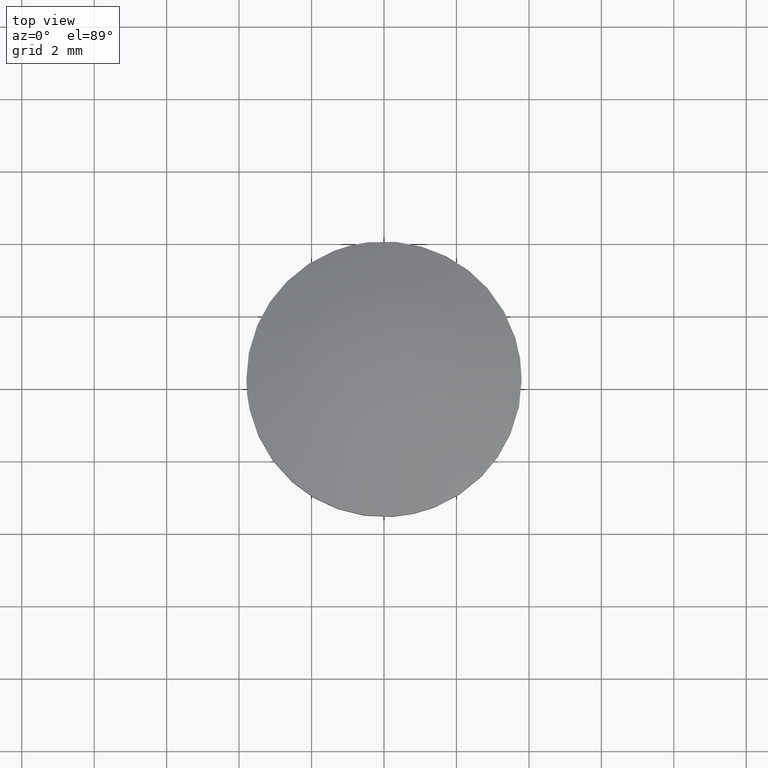
[diagram: clean part render]
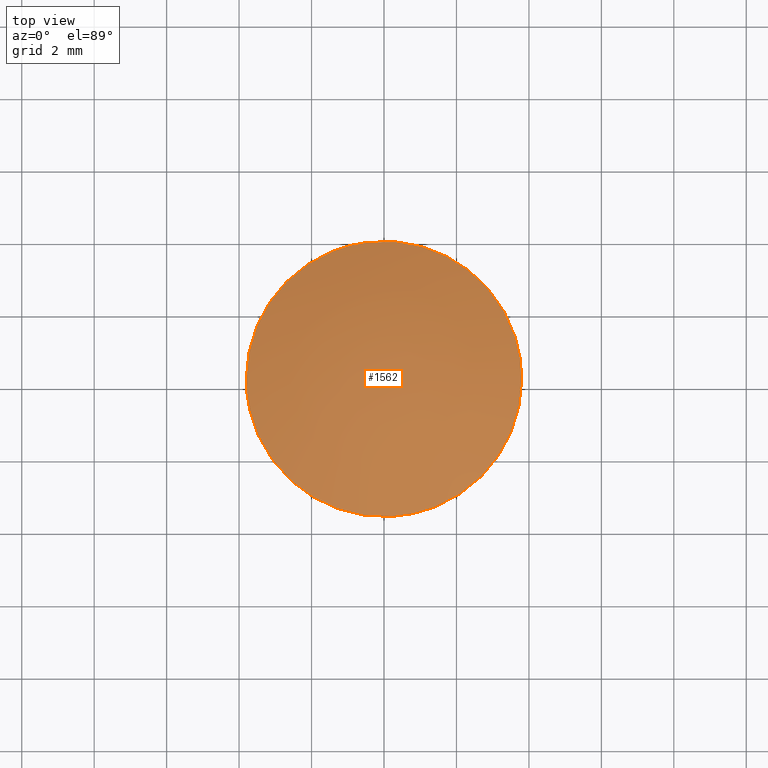
[diagram: same view with one face highlighted and labeled with its STEP entity id]
A machine part, top view. The second image highlights one B-rep face of the part: STEP entity #1562.
In plain terms, the highlighted face is a freeform B-spline surface patch.
Its self-contained STEP definition (entity closure, byte-faithful):
#1303=CARTESIAN_POINT('',(-0.448525131311080,3.773434961649228,2.000001066416300));
#1304=VERTEX_POINT('',#1303);
#1310=CARTESIAN_POINT('',(3.799997579514715,0.0,2.000001066416300));
#1311=VERTEX_POINT('',#1310);
#1312=CARTESIAN_POINT('',(-0.448525131311080,3.773434961649228,2.000001066416299));
#1313=CARTESIAN_POINT('',(-0.225049113184593,3.799997579514716,2.000001066416300));
#1314=CARTESIAN_POINT('',(0.0,3.799997579514715,2.000001066416300));
#1315=CARTESIAN_POINT('',(3.799997579514716,3.799997579514716,2.000001066416300));
#1316=CARTESIAN_POINT('',(3.799997579514715,0.0,2.000001066416300));
#1324=(BOUNDED_CURVE()B_SPLINE_CURVE(2,(#1312,#1313,#1314,#1315,#1316),.UNSPECIFIED.,.F.,.U.)B_SPLINE_CURVE_WITH_KNOTS((3,2,3),(0.229562686082739,0.250000000000000,0.500000000000000),.UNSPECIFIED.)CURVE()GEOMETRIC_REPRESENTATION_ITEM()RATIONAL_B_SPLINE_CURVE((0.956027170828514,0.976056197371490,1.0,0.707106781186547,1.0))REPRESENTATION_ITEM(''));
#1325=EDGE_CURVE('',#1304,#1311,#1324,.T.);
#1327=CARTESIAN_POINT('',(0.231981867130257,-3.792910573234465,2.000001066416300));
#1328=VERTEX_POINT('',#1327);
#1329=CARTESIAN_POINT('',(3.799997579514715,0.0,2.000001066416300));
#1330=CARTESIAN_POINT('',(3.799997579514715,-3.574683111662639,2.000001066416300));
#1331=CARTESIAN_POINT('',(0.231981867130257,-3.792910573234466,2.000001066416300));
#1339=(BOUNDED_CURVE()B_SPLINE_CURVE(2,(#1329,#1330,#1331),.UNSPECIFIED.,.F.,.U.)B_SPLINE_CURVE_WITH_KNOTS((3,3),(0.500000000000000,0.739333074710608),.UNSPECIFIED.)CURVE()GEOMETRIC_REPRESENTATION_ITEM()RATIONAL_B_SPLINE_CURVE((1.0,0.719603861517958,0.976072282715024))REPRESENTATION_ITEM(''));
#1340=EDGE_CURVE('',#1311,#1328,#1339,.T.);
#1414=CARTESIAN_POINT('',(-3.799997579514715,0.0,2.000001066416300));
#1415=VERTEX_POINT('',#1414);
#1416=CARTESIAN_POINT('',(0.231981867130257,-3.792910573234466,2.000001066416300));
#1417=CARTESIAN_POINT('',(0.116099186977931,-3.799997579514715,2.000001066416300));
#1418=CARTESIAN_POINT('',(0.0,-3.799997579514715,2.000001066416300));
#1419=CARTESIAN_POINT('',(-3.799997579514716,-3.799997579514716,2.000001066416300));
#1420=CARTESIAN_POINT('',(-3.799997579514715,0.0,2.000001066416300));
#1428=(BOUNDED_CURVE()B_SPLINE_CURVE(2,(#1416,#1417,#1418,#1419,#1420),.UNSPECIFIED.,.F.,.U.)B_SPLINE_CURVE_WITH_KNOTS((3,2,3),(0.739333074710608,0.750000000000000,1.0),.UNSPECIFIED.)CURVE()GEOMETRIC_REPRESENTATION_ITEM()RATIONAL_B_SPLINE_CURVE((0.976072282715024,0.987502919668589,1.0,0.707106781186547,1.0))REPRESENTATION_ITEM(''));
#1429=EDGE_CURVE('',#1328,#1415,#1428,.T.);
#1431=CARTESIAN_POINT('',(-3.799997579514715,0.0,2.000001066416300));
#1432=CARTESIAN_POINT('',(-3.799997579514715,3.375065323735156,2.000001066416300));
#1433=CARTESIAN_POINT('',(-0.448525131311080,3.773434961649228,2.000001066416299));
#1441=(BOUNDED_CURVE()B_SPLINE_CURVE(2,(#1431,#1432,#1433),.UNSPECIFIED.,.F.,.U.)B_SPLINE_CURVE_WITH_KNOTS((3,3),(0.0,0.229562686082739),.UNSPECIFIED.)CURVE()GEOMETRIC_REPRESENTATION_ITEM()RATIONAL_B_SPLINE_CURVE((1.0,0.731050583815058,0.956027170828514))REPRESENTATION_ITEM(''));
#1442=EDGE_CURVE('',#1415,#1304,#1441,.T.);
#1532=CARTESIAN_POINT('',(-3.942126964735795,-3.942039826263001,0.974380369612986));
#1533=CARTESIAN_POINT('',(-2.071371717345576,-4.142651861705474,1.840758120375754));
#1534=CARTESIAN_POINT('',(2.071371568935699,-4.142651861705474,1.840758120375754));
#1535=CARTESIAN_POINT('',(3.942126709645283,-3.942039853617848,0.974380487749623));
#1536=CARTESIAN_POINT('',(-4.142734114440979,-2.071321270830663,1.840717870154115));
#1537=CARTESIAN_POINT('',(-2.182431656012129,-2.182383414602562,2.799999999999991));
#1538=CARTESIAN_POINT('',(2.182431499645017,-2.182383414602562,2.799999999999991));
#1539=CARTESIAN_POINT('',(4.142733847832315,-2.071321285935541,1.840718000620164));
#1540=CARTESIAN_POINT('',(-4.142734114440979,2.071333026378338,1.840717870154119));
#1541=CARTESIAN_POINT('',(-2.182431656012129,2.182395800470767,2.799999999999996));
#1542=CARTESIAN_POINT('',(2.182431499645017,2.182395800470767,2.799999999999996));
#1543=CARTESIAN_POINT('',(4.142733847832315,2.071333041483301,1.840718000620170));
#1544=CARTESIAN_POINT('',(-3.942124797948171,3.942060032108499,0.974371012172961));
#1545=CARTESIAN_POINT('',(-2.071370520877272,4.142672979956435,1.840747786293823));
#1546=CARTESIAN_POINT('',(2.071370372467481,4.142672979956435,1.840747786293823));
#1547=CARTESIAN_POINT('',(3.942124542857785,3.942060059463473,0.974371130309470));
#1555=(BOUNDED_SURFACE()B_SPLINE_SURFACE(2,2,((#1532,#1536,#1540,#1544),(#1533,#1537,#1541,#1545),(#1534,#1538,#1542,#1546),(#1535,#1539,#1543,#1547)),.UNSPECIFIED.,.F.,.F.,.U.)B_SPLINE_SURFACE_WITH_KNOTS((3,1,3),(3,1,3),(1.423220904517174,5.587099359512765,9.750977516174316),(1.423312944680452,5.587099359512765,9.750909405440092),.UNSPECIFIED.)GEOMETRIC_REPRESENTATION_ITEM()RATIONAL_B_SPLINE_SURFACE(((1.107235599226012,1.053618984817048,1.053618984817048,1.107236207817702),(1.053616614408965,1.0,1.0,1.053617223000654),(1.053616614408965,1.0,1.0,1.053617223000654),(1.107235591542614,1.053618977133650,1.053618977133650,1.107236200134304)))REPRESENTATION_ITEM('')SURFACE());
#1556=ORIENTED_EDGE('',*,*,#1429,.F.);
#1557=ORIENTED_EDGE('',*,*,#1340,.F.);
#1558=ORIENTED_EDGE('',*,*,#1325,.F.);
#1559=ORIENTED_EDGE('',*,*,#1442,.F.);
#1560=EDGE_LOOP('',(#1556,#1557,#1558,#1559));
#1561=FACE_OUTER_BOUND('',#1560,.T.);
#1562=ADVANCED_FACE('',(#1561),#1555,.T.);